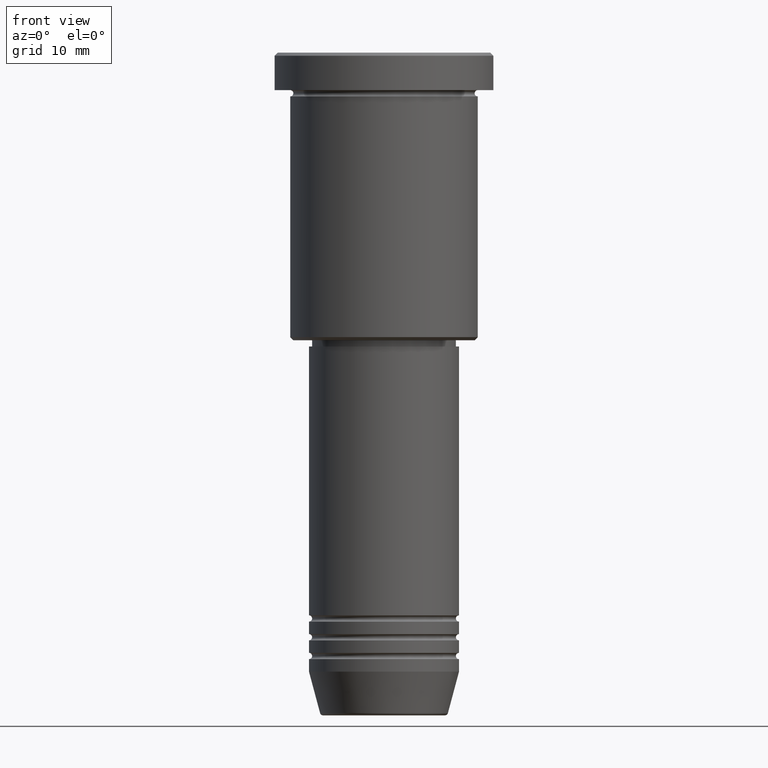
[diagram: clean part render]
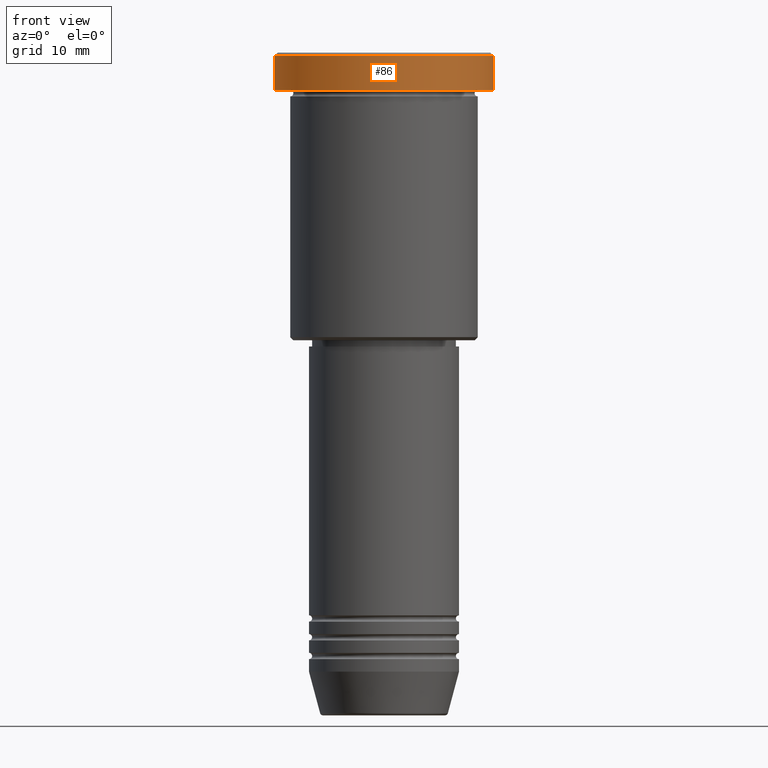
[diagram: same view with one face highlighted and labeled with its STEP entity id]
A machine part, front view. The second image highlights one B-rep face of the part: STEP entity #86.
In plain terms, the highlighted cylindrical surface (partial cylindrical patch) has radius 17.5 mm, axis along (-0, -0, 1).
Its self-contained STEP definition (entity closure, byte-faithful):
#1 = EDGE_CURVE ( 'NONE', #677, #590, #1036, .T. ) ;
#2 = CARTESIAN_POINT ( 'NONE',  ( 0.000000000000000000, 0.000000000000000000, -0.5000000000000280886 ) ) ;
#9 = DIRECTION ( 'NONE',  ( 0.000000000000000000, 0.000000000000000000, -1.000000000000000000 ) ) ;
#30 = ORIENTED_EDGE ( 'NONE', *, *, #873, .T. ) ;
#82 = DIRECTION ( 'NONE',  ( 1.000000000000000000, 0.000000000000000000, 0.000000000000000000 ) ) ;
#86 = ADVANCED_FACE ( 'NONE', ( #970 ), #908, .T. ) ;
#127 = VERTEX_POINT ( 'NONE', #888 ) ;
#232 = CARTESIAN_POINT ( 'NONE',  ( 0.000000000000000000, 0.000000000000000000, -5.999999999999995559 ) ) ;
#316 = CARTESIAN_POINT ( 'NONE',  ( 17.50000000000000000, 0.000000000000000000, -5.999999999999995559 ) ) ;
#343 = DIRECTION ( 'NONE',  ( -0.000000000000000000, -0.000000000000000000, 1.000000000000000000 ) ) ;
#388 = DIRECTION ( 'NONE',  ( -0.000000000000000000, -0.000000000000000000, 1.000000000000000000 ) ) ;
#408 = DIRECTION ( 'NONE',  ( -0.000000000000000000, -0.000000000000000000, 1.000000000000000000 ) ) ;
#464 = VECTOR ( 'NONE', #984, 1000.000000000000000 ) ;
#493 = CARTESIAN_POINT ( 'NONE',  ( -17.50000000000000000, 2.143131898507868248E-15, -0.5000000000000280886 ) ) ;
#501 = EDGE_LOOP ( 'NONE', ( #673, #991, #594, #30 ) ) ;
#512 = CIRCLE ( 'NONE', #968, 17.50000000000000000 ) ;
#532 = AXIS2_PLACEMENT_3D ( 'NONE', #232, #408, #1028 ) ;
#590 = VERTEX_POINT ( 'NONE', #316 ) ;
#594 = ORIENTED_EDGE ( 'NONE', *, *, #743, .T. ) ;
#646 = VECTOR ( 'NONE', #388, 1000.000000000000000 ) ;
#673 = ORIENTED_EDGE ( 'NONE', *, *, #1013, .F. ) ;
#677 = VERTEX_POINT ( 'NONE', #909 ) ;
#733 = DIRECTION ( 'NONE',  ( 1.000000000000000000, 0.000000000000000000, 0.000000000000000000 ) ) ;
#735 = AXIS2_PLACEMENT_3D ( 'NONE', #1171, #343, #82 ) ;
#743 = EDGE_CURVE ( 'NONE', #590, #127, #1079, .T. ) ;
#813 = CARTESIAN_POINT ( 'NONE',  ( 17.50000000000000000, 0.000000000000000000, 0.000000000000000000 ) ) ;
#864 = LINE ( 'NONE', #957, #646 ) ;
#873 = EDGE_CURVE ( 'NONE', #127, #1050, #512, .T. ) ;
#888 = CARTESIAN_POINT ( 'NONE',  ( 17.50000000000000000, 0.000000000000000000, -0.5000000000000280886 ) ) ;
#908 = CYLINDRICAL_SURFACE ( 'NONE', #735, 17.50000000000000000 ) ;
#909 = CARTESIAN_POINT ( 'NONE',  ( -17.50000000000000000, 2.143131898507868248E-15, -5.999999999999995559 ) ) ;
#957 = CARTESIAN_POINT ( 'NONE',  ( -17.50000000000000000, 2.143131898507868248E-15, 0.000000000000000000 ) ) ;
#968 = AXIS2_PLACEMENT_3D ( 'NONE', #2, #9, #733 ) ;
#970 = FACE_OUTER_BOUND ( 'NONE', #501, .T. ) ;
#984 = DIRECTION ( 'NONE',  ( -0.000000000000000000, -0.000000000000000000, 1.000000000000000000 ) ) ;
#991 = ORIENTED_EDGE ( 'NONE', *, *, #1, .T. ) ;
#1013 = EDGE_CURVE ( 'NONE', #677, #1050, #864, .T. ) ;
#1028 = DIRECTION ( 'NONE',  ( 1.000000000000000000, 0.000000000000000000, 0.000000000000000000 ) ) ;
#1036 = CIRCLE ( 'NONE', #532, 17.50000000000000000 ) ;
#1050 = VERTEX_POINT ( 'NONE', #493 ) ;
#1079 = LINE ( 'NONE', #813, #464 ) ;
#1171 = CARTESIAN_POINT ( 'NONE',  ( 0.000000000000000000, 0.000000000000000000, 0.000000000000000000 ) ) ;